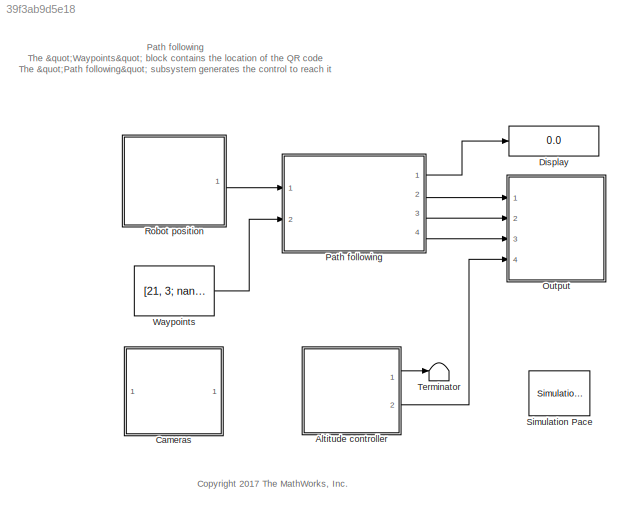
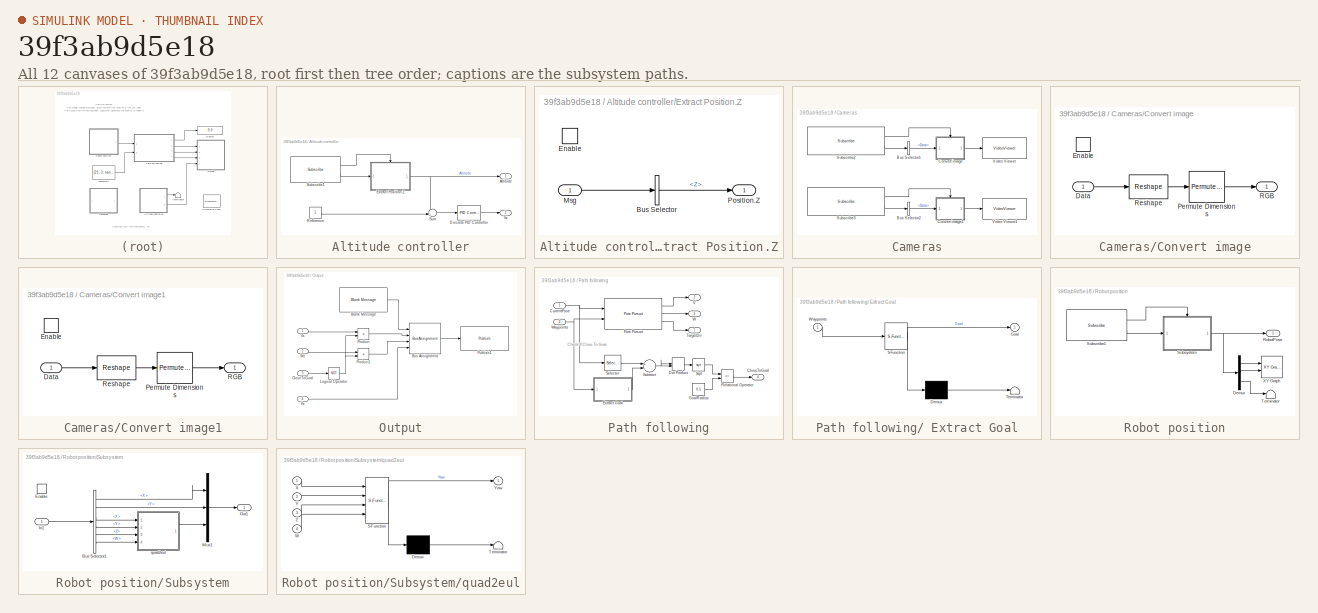
[diagram: thumbnail index - all 12 canvases of the model, root first then tree order]
MODEL slx_39f3ab9d5e18
KIND model
CONFIG AbsTol = auto
CONFIG EnableMultiTasking = on
CONFIG FixedStep = 0.1
CONFIG MaxStep = auto
CONFIG MinStep = auto
CONFIG RelTol = 1e-3
CONFIG SampleTimeConstraint = Unconstrained
CONFIG Solver = FixedStepDiscrete
CONFIG SolverName = FixedStepDiscrete
CONFIG StartTime = 0.0
CONFIG StopTime = Inf
WORKSPACE source: MAT-file member
WORKSPACE SL_ROS_VariableLengthArrays_MaxSizes: struct (value not decoded)
BLOCK [SubSystem] Altitude controller
  Ports = [0, 2]
  RequestExecContextInheritance = off
  Variant = off
BLOCK [Outport] Altitude controller/Altitude
  IconDisplay = Port number
BLOCK [Reference] Altitude controller/Discrete PID Controller  REF=simulink/Continuous/PID Controller
  Ports = [1, 1]
  SourceBlock = simulink/Continuous/PID Controller
  SourceProductBaseCode = SL
  SourceProductName = Simulink
  SourceType = PID 1dof
BLOCK [SubSystem] Altitude controller/Extract Position.Z
  Ports = [1, 1, 1]
  RequestExecContextInheritance = off
  Variant = off
BLOCK [BusSelector] Altitude controller/Extract Position.Z/Bus Selector
  OutputAsBus = off
  OutputSignals = Pose.Pose.Position.Z
  Ports = [1, 1]
BLOCK [EnablePort] Altitude controller/Extract Position.Z/Enable
  Ports = []
BLOCK [Inport] Altitude controller/Extract Position.Z/Msg
  IconDisplay = Port number
BLOCK [Outport] Altitude controller/Extract Position.Z/Position.Z
  IconDisplay = Port number
BLOCK [Constant] Altitude controller/Reference
  Value = 5
BLOCK [Reference] Altitude controller/Subscribe1  REF=robotlib/Subscribe
  Ports = [0, 2]
  SourceBlock = robotlib/Subscribe
  SourceLibraryInfo = This block requires Robotics System Toolbox
  SourceProductBaseCode = RO
  SourceProductName = Robotics System Toolbox
  SourceType = ROS Subscribe
BLOCK [Sum] Altitude controller/Sum
  IconShape = round
  InputSameDT = off
  Inputs = -+|
  OutDataTypeStr = Inherit: Inherit via internal rule
  Ports = [2, 1]
  SaturateOnIntegerOverflow = off
BLOCK [Outport] Altitude controller/Vz
  IconDisplay = Port number
  Port = 2
BLOCK [SubSystem] Cameras
  Ports = []
  RequestExecContextInheritance = off
  Variant = off
BLOCK [BusSelector] Cameras/Bus Selector1
  DialogController = Simulink.DDGSource_BusSelector
  OutputAsBus = off
  OutputSignals = Data
  Ports = [1, 1]
BLOCK [BusSelector] Cameras/Bus Selector2
  DialogController = Simulink.DDGSource_BusSelector
  OutputAsBus = off
  OutputSignals = Data
  Ports = [1, 1]
BLOCK [SubSystem] Cameras/Convert image
  Ports = [1, 1, 1]
  RequestExecContextInheritance = off
  Variant = off
BLOCK [Inport] Cameras/Convert image/Data
  IconDisplay = Port number
BLOCK [EnablePort] Cameras/Convert image/Enable
  Ports = []
BLOCK [PermuteDimensions] Cameras/Convert image/Permute Dimensions
  Order = [3 2 1]
BLOCK [Outport] Cameras/Convert image/RGB
  IconDisplay = Port number
BLOCK [Reshape] Cameras/Convert image/Reshape
  OutputDimensionality = Customize
  OutputDimensions = [3 640 360]
  Ports = [1, 1]
BLOCK [SubSystem] Cameras/Convert image1
  Ports = [1, 1, 1]
  RequestExecContextInheritance = off
  Variant = off
BLOCK [Inport] Cameras/Convert image1/Data
  IconDisplay = Port number
BLOCK [EnablePort] Cameras/Convert image1/Enable
  Ports = []
BLOCK [PermuteDimensions] Cameras/Convert image1/Permute Dimensions
  Order = [3 2 1]
BLOCK [Outport] Cameras/Convert image1/RGB
  IconDisplay = Port number
BLOCK [Reshape] Cameras/Convert image1/Reshape
  OutputDimensionality = Customize
  OutputDimensions = [3 640 360]
  Ports = [1, 1]
BLOCK [Reference] Cameras/Subscribe2  REF=robotlib/Subscribe
  Ports = [0, 2]
  SourceBlock = robotlib/Subscribe
  SourceLibraryInfo = This block requires Robotics System Toolbox
  SourceProductBaseCode = RO
  SourceProductName = Robotics System Toolbox
  SourceType = ROS Subscribe
BLOCK [Reference] Cameras/Subscribe3  REF=robotlib/Subscribe
  Ports = [0, 2]
  SourceBlock = robotlib/Subscribe
  SourceLibraryInfo = This block requires Robotics System Toolbox
  SourceProductBaseCode = RO
  SourceProductName = Robotics System Toolbox
  SourceType = ROS Subscribe
BLOCK [VideoViewer] Cameras/Video Viewer
  FigPos = [958.381818181818 500.690909090909 609.163636363636 376.145454545455]
  Ports = [1]
  ScopeSpecificationString = vipscopes.VideoViewerScopeCfg('CurrentConfiguration', extmgr.ConfigurationSet(extmgr.Configuration('Core','General UI',true),extmgr.Configuration('Core','Source UI',true),extmgr.Configuration('Sources','WiredSimulink',true),extmgr.Configuration('Visuals','Video',true),extmgr.Configuration('Tools','Image Navigation Tools',true),extmgr.Configuration('Tools','Image Tool',true),extmgr.Configuration('T...<+153ch>
  colormapValue = gray(256)
BLOCK [VideoViewer] Cameras/Video Viewer1
  FigPos = [925.218181818182 992.036363636364 609.163636363636 376.145454545455]
  Ports = [1]
  ScopeSpecificationString = vipscopes.VideoViewerScopeCfg('CurrentConfiguration', extmgr.ConfigurationSet(extmgr.Configuration('Core','General UI',true),extmgr.Configuration('Core','Source UI',true),extmgr.Configuration('Sources','WiredSimulink',true),extmgr.Configuration('Visuals','Video',true),extmgr.Configuration('Tools','Image Navigation Tools',true),extmgr.Configuration('Tools','Image Tool',true),extmgr.Configuration('T...<+153ch>
  colormapValue = gray(256)
BLOCK [Display] Display
  Decimation = 1
  Ports = [1]
BLOCK [SubSystem] Output
  Ports = [4]
  RequestExecContextInheritance = off
  Variant = off
BLOCK [Reference] Output/Blank Message  REF=robotlib/Blank Message
  Ports = [0, 1]
  SourceBlock = robotlib/Blank Message
  SourceLibraryInfo = This block requires Robotics System Toolbox
  SourceProductBaseCode = RO
  SourceProductName = Robotics System Toolbox
  SourceType = ROS Blank Message
BLOCK [BusAssignment] Output/Bus Assignment
  AssignedSignals = Linear.X,Angular.Z,Linear.Z
  DialogController = Simulink.DDGSource_BusAssignment
  Ports = [4, 1]
BLOCK [Inport] Output/CloseToGoal
  IconDisplay = Port number
  Port = 3
BLOCK [Logic] Output/Logical Operator
  AllPortsSameDT = off
  Operator = NOT
  OutDataTypeStr = boolean
  Ports = [1, 1]
BLOCK [Product] Output/Product
  InputSameDT = off
  OutDataTypeStr = Inherit: Inherit via internal rule
  Ports = [2, 1]
  RndMeth = Floor
  SaturateOnIntegerOverflow = off
BLOCK [Product] Output/Product1
  InputSameDT = off
  OutDataTypeStr = Inherit: Inherit via internal rule
  Ports = [2, 1]
  RndMeth = Floor
  SaturateOnIntegerOverflow = off
BLOCK [Reference] Output/Publish1  REF=robotlib/Publish
  Ports = [1]
  SourceBlock = robotlib/Publish
  SourceLibraryInfo = This block requires Robotics System Toolbox
  SourceProductBaseCode = RO
  SourceProductName = Robotics System Toolbox
  SourceType = ROS Publish
BLOCK [Inport] Output/Vx
  IconDisplay = Port number
BLOCK [Inport] Output/Vz
  IconDisplay = Port number
  Port = 4
BLOCK [Inport] Output/Wz
  IconDisplay = Port number
  Port = 2
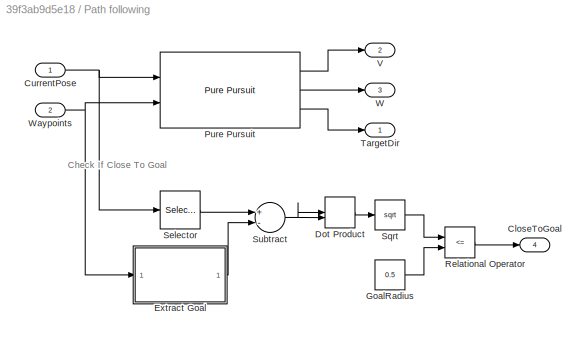
BLOCK [SubSystem] Path following
  Ports = [2, 4]
  RequestExecContextInheritance = off
  Variant = off
BLOCK [SubSystem] Path following/ Extract Goal
  ErrorFcn = Stateflow.Translate.translate
  PermitHierarchicalResolution = ExplicitOnly
  Ports = [1, 1]
  RequestExecContextInheritance = off
  SFBlockType = MATLAB Function
  TreatAsAtomicUnit = on
  Variant = off
BLOCK [Demux] Path following/ Extract Goal/ Demux 
  Outputs = 1
  Ports = [1, 1]
BLOCK [S-Function] Path following/ Extract Goal/ SFunction 
  EnableBusSupport = on
  FunctionName = sf_sfun
  PortCounts = [1 2]
  Ports = [1, 2]
  SFcnIsStateOwnerBlock = off
  SFunctionDeploymentMode = off
  Tag = Stateflow S-Function pathFollowing 7
BLOCK [Terminator] Path following/ Extract Goal/ Terminator 
BLOCK [Outport] Path following/ Extract Goal/Goal
  IconDisplay = Port number
BLOCK [Inport] Path following/ Extract Goal/Waypoints
  IconDisplay = Port number
BLOCK [Outport] Path following/CloseToGoal
  IconDisplay = Port number
  Port = 4
BLOCK [Inport] Path following/CurrentPose
  IconDisplay = Port number
BLOCK [DotProduct] Path following/Dot Product
  OutDataTypeStr = Inherit: Inherit via internal rule
BLOCK [Constant] Path following/GoalRadius
  Value = 0.5
BLOCK [Reference] Path following/Pure Pursuit  REF=robotalgslib/Pure Pursuit
  Ports = [2, 3]
  SourceBlock = robotalgslib/Pure Pursuit
  SourceProductBaseCode = RO
  SourceProductName = Robotics System Toolbox
  SourceType = robotics.slalgs.internal.PurePursuit
BLOCK [RelationalOperator] Path following/Relational Operator
  InputSameDT = off
  Operator = <=
  OutDataTypeStr = boolean
  Ports = [2, 1]
  RndMeth = Simplest
BLOCK [Selector] Path following/Selector
  IndexOptions = Index vector (dialog)
  Indices = [1 2]
  InputPortWidth = 3
  OutputSizes = 1
  Ports = [1, 1]
BLOCK [Sqrt] Path following/Sqrt
BLOCK [Sum] Path following/Subtract
  InputSameDT = off
  Inputs = +-
  OutDataTypeStr = Inherit: Inherit via internal rule
  Ports = [2, 1]
  SaturateOnIntegerOverflow = off
BLOCK [Outport] Path following/TargetDir
  IconDisplay = Port number
BLOCK [Outport] Path following/V
  IconDisplay = Port number
  Port = 2
BLOCK [Outport] Path following/W
  IconDisplay = Port number
  Port = 3
BLOCK [Inport] Path following/Waypoints
  IconDisplay = Port number
  Port = 2
BLOCK [SubSystem] Robot position
  Ports = [0, 1]
  RequestExecContextInheritance = off
  Variant = off
BLOCK [Demux] Robot position/Demux
  DisplayOption = bar
  Outputs = 3
  Ports = [1, 3]
BLOCK [Outport] Robot position/RobotPose
  IconDisplay = Port number
BLOCK [Reference] Robot position/Subscribe1  REF=robotlib/Subscribe
  Ports = [0, 2]
  SourceBlock = robotlib/Subscribe
  SourceLibraryInfo = This block requires Robotics System Toolbox
  SourceProductBaseCode = RO
  SourceProductName = Robotics System Toolbox
  SourceType = ROS Subscribe
BLOCK [SubSystem] Robot position/Subsystem
  Ports = [1, 1, 1]
  RequestExecContextInheritance = off
  Variant = off
BLOCK [BusSelector] Robot position/Subsystem/Bus Selector1
  OutputAsBus = off
  OutputSignals = Pose.Pose.Position.X,Pose.Pose.Position.Y,Pose.Pose.Orientation.X,Pose.Pose.Orientation.Y,Pose.Pose.Orientation.Z,Pose.Pose.Orientation.W
  Ports = [1, 6]
BLOCK [EnablePort] Robot position/Subsystem/Enable
  Ports = []
BLOCK [Inport] Robot position/Subsystem/In1
  IconDisplay = Port number
BLOCK [Mux] Robot position/Subsystem/Mux1
  DisplayOption = bar
  Inputs = 3
  Ports = [3, 1]
BLOCK [Outport] Robot position/Subsystem/Out1
  IconDisplay = Port number
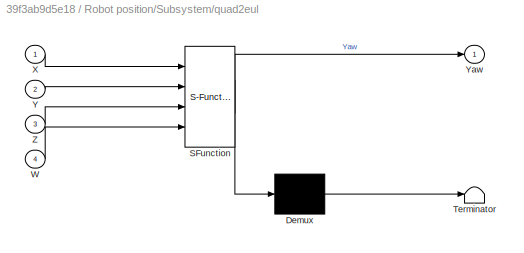
BLOCK [SubSystem] Robot position/Subsystem/quad2eul
  ErrorFcn = Stateflow.Translate.translate
  PermitHierarchicalResolution = ExplicitOnly
  Ports = [4, 1]
  RequestExecContextInheritance = off
  SFBlockType = MATLAB Function
  TreatAsAtomicUnit = on
  Variant = off
BLOCK [Demux] Robot position/Subsystem/quad2eul/ Demux 
  Outputs = 1
  Ports = [1, 1]
BLOCK [S-Function] Robot position/Subsystem/quad2eul/ SFunction 
  EnableBusSupport = on
  FunctionName = sf_sfun
  PortCounts = [4 2]
  Ports = [4, 2]
  SFcnIsStateOwnerBlock = off
  SFunctionDeploymentMode = off
  Tag = Stateflow S-Function pathFollowing 1
BLOCK [Terminator] Robot position/Subsystem/quad2eul/ Terminator 
BLOCK [Inport] Robot position/Subsystem/quad2eul/W
  IconDisplay = Port number
  Port = 4
BLOCK [Inport] Robot position/Subsystem/quad2eul/X
  IconDisplay = Port number
BLOCK [Inport] Robot position/Subsystem/quad2eul/Y
  IconDisplay = Port number
  Port = 2
BLOCK [Outport] Robot position/Subsystem/quad2eul/Yaw
  IconDisplay = Port number
BLOCK [Inport] Robot position/Subsystem/quad2eul/Z
  IconDisplay = Port number
  Port = 3
BLOCK [Terminator] Robot position/Terminator
BLOCK [Reference] Robot position/XY Graph  REF=simulink/Sinks/XY Graph
  Ports = [2]
  SourceBlock = simulink/Sinks/XY Graph
  SourceProductBaseCode = SL
  SourceProductName = Simulink
  SourceType = XY scope.
BLOCK [Reference] Simulation Pace  REF=aerolibanimutils/Simulation Pace
  AttributesFormatString = %<SleepMode>\n%<SimulationPace> sec/sec
  Ports = []
  SourceBlock = aerolibanimutils/Simulation Pace
  SourceProductBaseCode = AE
  SourceProductName = Aerospace Blockset
  SourceType = Simulation Pace
BLOCK [Terminator] Terminator
BLOCK [Constant] Waypoints
  OutDataTypeStr = double
  Value = [21, 3; nan, nan]
ANNOTATION (root): Path following The "Waypoints" block contains the location of the QR code The "Path following" subsystem generates the control to reach it
ANNOTATION (root): <copyright redacted>
ANNOTATION Path following: Check If Close To Goal
LINE Altitude controller/Discrete PID Controller:1 -> Altitude controller/Vz:1
LINE Altitude controller/Extract Position.Z/Bus Selector:1 -> Altitude controller/Extract Position.Z/Position.Z:1
LINE Altitude controller/Extract Position.Z/Msg:1 -> Altitude controller/Extract Position.Z/Bus Selector:1
NET Altitude controller/Extract Position.Z:1 -> Altitude controller/Altitude:1, Altitude controller/Sum:1
LINE Altitude controller/Reference:1 -> Altitude controller/Sum:2
LINE Altitude controller/Subscribe1:1 -> Altitude controller/Extract Position.Z:enable
LINE Altitude controller/Subscribe1:2 -> Altitude controller/Extract Position.Z:1
LINE Altitude controller/Sum:1 -> Altitude controller/Discrete PID Controller:1
LINE Altitude controller:1 -> Terminator:1
LINE Altitude controller:2 -> Output:4
LINE Cameras/Bus Selector1:1 -> Cameras/Convert image:1
LINE Cameras/Bus Selector2:1 -> Cameras/Convert image1:1
LINE Cameras/Convert image/Data:1 -> Cameras/Convert image/Reshape:1
LINE Cameras/Convert image/Permute Dimensions:1 -> Cameras/Convert image/RGB:1
LINE Cameras/Convert image/Reshape:1 -> Cameras/Convert image/Permute Dimensions:1
LINE Cameras/Convert image1/Data:1 -> Cameras/Convert image1/Reshape:1
LINE Cameras/Convert image1/Permute Dimensions:1 -> Cameras/Convert image1/RGB:1
LINE Cameras/Convert image1/Reshape:1 -> Cameras/Convert image1/Permute Dimensions:1
LINE Cameras/Convert image1:1 -> Cameras/Video Viewer1:1
LINE Cameras/Convert image:1 -> Cameras/Video Viewer:1
LINE Cameras/Subscribe2:1 -> Cameras/Convert image:enable
LINE Cameras/Subscribe2:2 -> Cameras/Bus Selector1:1
LINE Cameras/Subscribe3:1 -> Cameras/Convert image1:enable
LINE Cameras/Subscribe3:2 -> Cameras/Bus Selector2:1
LINE Output/Blank Message:1 -> Output/Bus Assignment:1
LINE Output/Bus Assignment:1 -> Output/Publish1:1
LINE Output/CloseToGoal:1 -> Output/Logical Operator:1
NET Output/Logical Operator:1 -> Output/Product1:2, Output/Product:2
LINE Output/Product1:1 -> Output/Bus Assignment:3
LINE Output/Product:1 -> Output/Bus Assignment:2
LINE Output/Vx:1 -> Output/Product:1
LINE Output/Vz:1 -> Output/Bus Assignment:4
LINE Output/Wz:1 -> Output/Product1:1
LINE Path following/ Extract Goal:1 -> Path following/Subtract:2
NET Path following/CurrentPose:1 -> Path following/Pure Pursuit:1, Path following/Selector:1
LINE Path following/Dot Product:1 -> Path following/Sqrt:1
LINE Path following/GoalRadius:1 -> Path following/Relational Operator:2
LINE Path following/Pure Pursuit:1 -> Path following/V:1
LINE Path following/Pure Pursuit:2 -> Path following/W:1
LINE Path following/Pure Pursuit:3 -> Path following/TargetDir:1
LINE Path following/Relational Operator:1 -> Path following/CloseToGoal:1
LINE Path following/Selector:1 -> Path following/Subtract:1
LINE Path following/Sqrt:1 -> Path following/Relational Operator:1
NET Path following/Subtract:1 -> Path following/Dot Product:1, Path following/Dot Product:2
NET Path following/Waypoints:1 -> Path following/ Extract Goal:1, Path following/Pure Pursuit:2
LINE Path following:1 -> Display:1
LINE Path following:2 -> Output:1
LINE Path following:3 -> Output:2
LINE Path following:4 -> Output:3
LINE Robot position/Demux:1 -> Robot position/XY Graph:1
LINE Robot position/Demux:2 -> Robot position/XY Graph:2
LINE Robot position/Demux:3 -> Robot position/Terminator:1
LINE Robot position/Subscribe1:1 -> Robot position/Subsystem:enable
LINE Robot position/Subscribe1:2 -> Robot position/Subsystem:1
LINE Robot position/Subsystem/Bus Selector1:1 -> Robot position/Subsystem/Mux1:1
LINE Robot position/Subsystem/Bus Selector1:2 -> Robot position/Subsystem/Mux1:2
LINE Robot position/Subsystem/Bus Selector1:3 -> Robot position/Subsystem/quad2eul:1
LINE Robot position/Subsystem/Bus Selector1:4 -> Robot position/Subsystem/quad2eul:2
LINE Robot position/Subsystem/Bus Selector1:5 -> Robot position/Subsystem/quad2eul:3
LINE Robot position/Subsystem/Bus Selector1:6 -> Robot position/Subsystem/quad2eul:4
LINE Robot position/Subsystem/In1:1 -> Robot position/Subsystem/Bus Selector1:1
LINE Robot position/Subsystem/Mux1:1 -> Robot position/Subsystem/Out1:1
LINE Robot position/Subsystem/quad2eul:1 -> Robot position/Subsystem/Mux1:3
NET Robot position/Subsystem:1 -> Robot position/Demux:1, Robot position/RobotPose:1
LINE Robot position:1 -> Path following:1
LINE Waypoints:1 -> Path following:2
note: NET lines group one-source signal fan-out (src -> all destinations, sorted); 1:1 wires keep LINE
CHART Robot position/Subsystem/quad2eul states=1 transitions=1
  STATE_LABEL 'eML_blk_kernel()'
  STATE_LABEL 'SCRIPT:\nfunction Yaw = quat2eulBlk(X, Y, Z, W)\n%#codegen\n\neularAngles = quat2eul([W, X, Y, Z]);\nYaw = eularAngles(1);'
CHART Path following/ Extract Goal states=1 transitions=1
  STATE_LABEL 'eML_blk_kernel()'
  STATE_LABEL 'SCRIPT:\nfunction Goal = extractGoal(Waypoints)\n%#codegen\nb = isnan(Waypoints);\n[rows,~] = find(b);\nridx = setdiff(1:size(Waypoints,1), sort(rows));\nGoal = [Waypoints(ridx(end), 1) Waypoints(ridx(end), 2)];'
